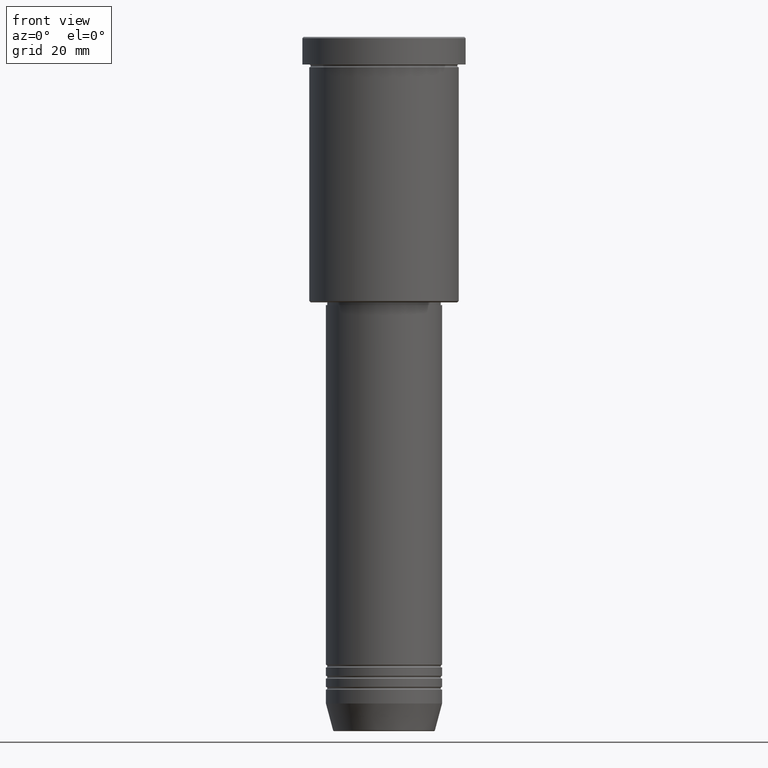
[diagram: clean part render]
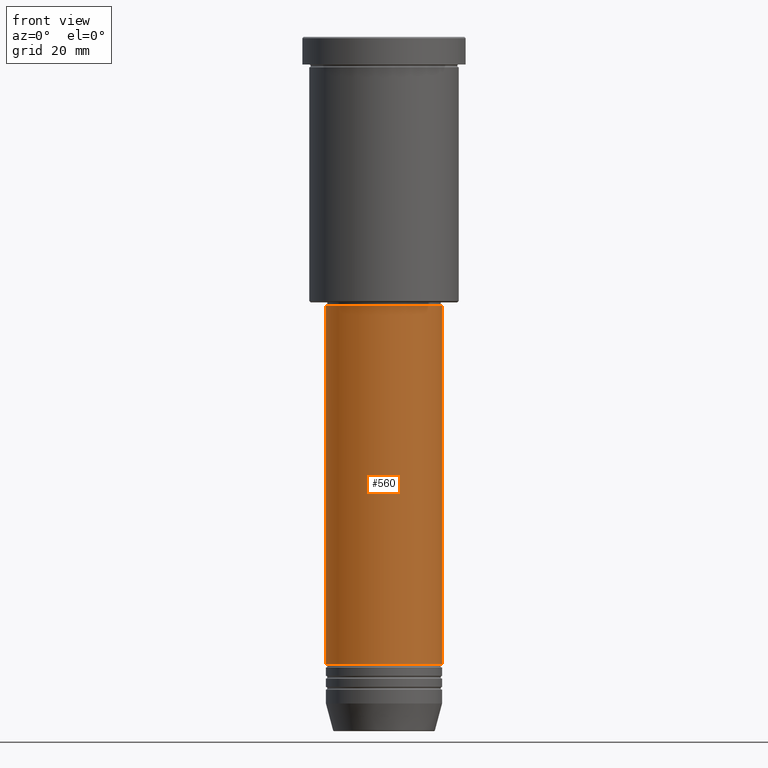
[diagram: same view with one face highlighted and labeled with its STEP entity id]
A machine part, front view. The second image highlights one B-rep face of the part: STEP entity #560.
In plain terms, the highlighted cylindrical surface (partial cylindrical patch) has radius 21 mm, axis along (-0, -0, 1).
Its self-contained STEP definition (entity closure, byte-faithful):
#2 = DIRECTION ( 'NONE',  ( 1.000000000000000000, 0.000000000000000000, 0.000000000000000000 ) ) ;
#38 = CARTESIAN_POINT ( 'NONE',  ( 20.99999999999999645, 0.000000000000000000, -97.00000000000002842 ) ) ;
#57 = CYLINDRICAL_SURFACE ( 'NONE', #648, 20.99999999999999645 ) ;
#70 = ORIENTED_EDGE ( 'NONE', *, *, #287, .T. ) ;
#71 = DIRECTION ( 'NONE',  ( -0.000000000000000000, -0.000000000000000000, 1.000000000000000000 ) ) ;
#99 = VERTEX_POINT ( 'NONE', #38 ) ;
#101 = DIRECTION ( 'NONE',  ( -0.000000000000000000, -0.000000000000000000, 1.000000000000000000 ) ) ;
#180 = CIRCLE ( 'NONE', #516, 21.00000000000000000 ) ;
#183 = VERTEX_POINT ( 'NONE', #247 ) ;
#195 = CARTESIAN_POINT ( 'NONE',  ( 20.99999999999999645, 0.000000000000000000, 0.000000000000000000 ) ) ;
#198 = AXIS2_PLACEMENT_3D ( 'NONE', #969, #335, #2 ) ;
#232 = ORIENTED_EDGE ( 'NONE', *, *, #657, .F. ) ;
#247 = CARTESIAN_POINT ( 'NONE',  ( -20.99999999999999645, 2.571758278209441267E-15, -97.00000000000002842 ) ) ;
#274 = DIRECTION ( 'NONE',  ( 1.000000000000000000, 0.000000000000000000, 0.000000000000000000 ) ) ;
#286 = DIRECTION ( 'NONE',  ( -0.000000000000000000, -0.000000000000000000, 1.000000000000000000 ) ) ;
#287 = EDGE_CURVE ( 'NONE', #720, #497, #180, .T. ) ;
#324 = EDGE_CURVE ( 'NONE', #497, #99, #1009, .T. ) ;
#335 = DIRECTION ( 'NONE',  ( -0.000000000000000000, -0.000000000000000000, 1.000000000000000000 ) ) ;
#372 = CARTESIAN_POINT ( 'NONE',  ( 0.000000000000000000, 0.000000000000000000, -226.9999999999998863 ) ) ;
#387 = EDGE_CURVE ( 'NONE', #720, #183, #454, .T. ) ;
#454 = LINE ( 'NONE', #551, #749 ) ;
#497 = VERTEX_POINT ( 'NONE', #782 ) ;
#516 = AXIS2_PLACEMENT_3D ( 'NONE', #372, #286, #274 ) ;
#551 = CARTESIAN_POINT ( 'NONE',  ( -20.99999999999999645, 2.571758278209441267E-15, 0.000000000000000000 ) ) ;
#560 = ADVANCED_FACE ( 'NONE', ( #878 ), #57, .T. ) ;
#609 = CARTESIAN_POINT ( 'NONE',  ( 0.000000000000000000, 0.000000000000000000, 0.000000000000000000 ) ) ;
#648 = AXIS2_PLACEMENT_3D ( 'NONE', #609, #71, #788 ) ;
#657 = EDGE_CURVE ( 'NONE', #183, #99, #1015, .T. ) ;
#720 = VERTEX_POINT ( 'NONE', #742 ) ;
#732 = EDGE_LOOP ( 'NONE', ( #874, #70, #829, #232 ) ) ;
#742 = CARTESIAN_POINT ( 'NONE',  ( -21.00000000000000000, 2.571758278209441661E-15, -226.9999999999998863 ) ) ;
#749 = VECTOR ( 'NONE', #101, 1000.000000000000000 ) ;
#782 = CARTESIAN_POINT ( 'NONE',  ( 21.00000000000000000, 0.000000000000000000, -226.9999999999998863 ) ) ;
#788 = DIRECTION ( 'NONE',  ( 1.000000000000000000, 0.000000000000000000, 0.000000000000000000 ) ) ;
#828 = VECTOR ( 'NONE', #836, 1000.000000000000000 ) ;
#829 = ORIENTED_EDGE ( 'NONE', *, *, #324, .T. ) ;
#836 = DIRECTION ( 'NONE',  ( -0.000000000000000000, -0.000000000000000000, 1.000000000000000000 ) ) ;
#874 = ORIENTED_EDGE ( 'NONE', *, *, #387, .F. ) ;
#878 = FACE_OUTER_BOUND ( 'NONE', #732, .T. ) ;
#969 = CARTESIAN_POINT ( 'NONE',  ( 0.000000000000000000, 0.000000000000000000, -97.00000000000002842 ) ) ;
#1009 = LINE ( 'NONE', #195, #828 ) ;
#1015 = CIRCLE ( 'NONE', #198, 20.99999999999999645 ) ;